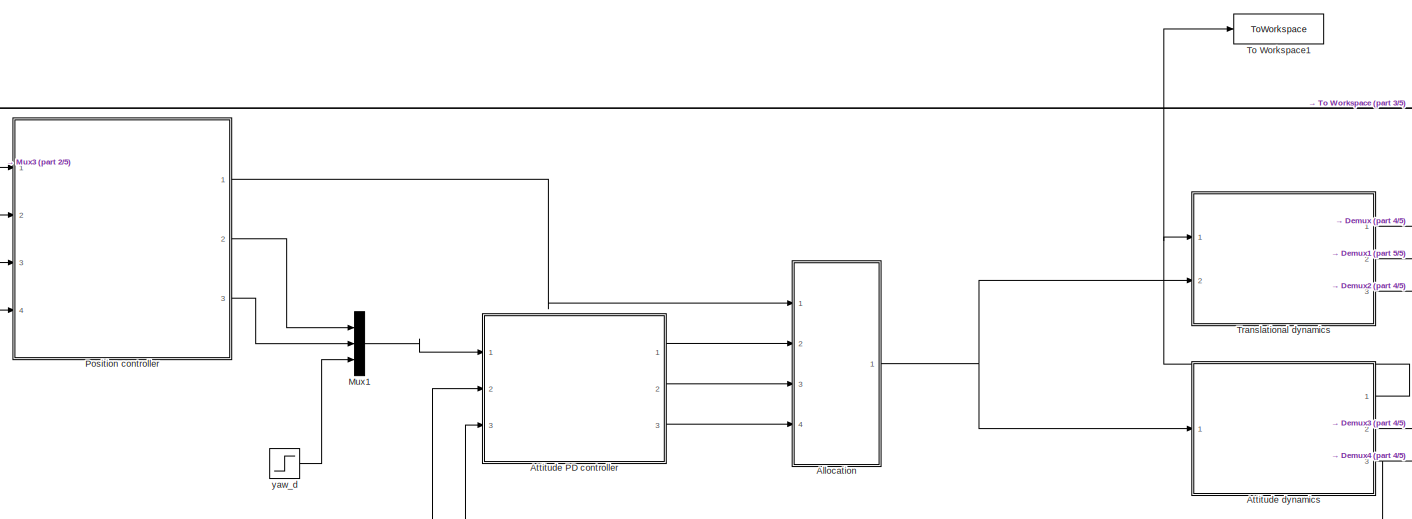
[diagram: root canvas - part 1/5, central region]
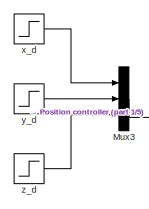
[diagram: root canvas - part 2/5, top left region]
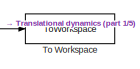
[diagram: root canvas - part 3/5, top right region]
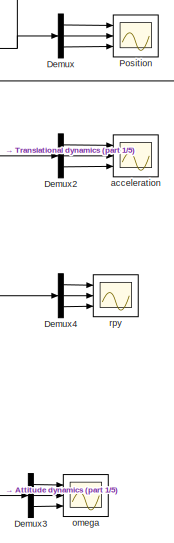
[diagram: root canvas - part 4/5, middle right region]
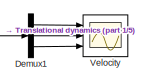
[diagram: root canvas - part 5/5, middle right region]
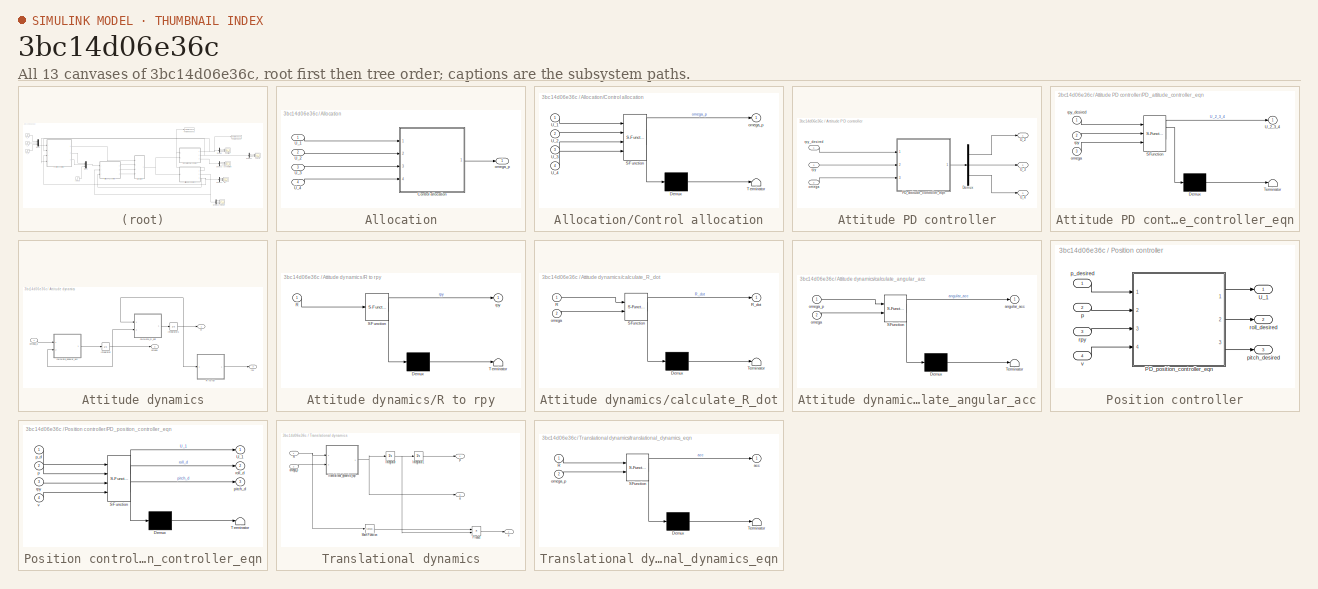
[diagram: thumbnail index - all 13 canvases of the model, root first then tree order]
MODEL slx_3bc14d06e36c
KIND model
CONFIG AbsTol = auto
CONFIG EnableMultiTasking = on
CONFIG FixedStep = 0.01
CONFIG MaxStep = auto
CONFIG MinStep = auto
CONFIG RelTol = 1e-3
CONFIG SampleTimeConstraint = Unconstrained
CONFIG Solver = ode4
CONFIG SolverName = ode4
CONFIG StartTime = 0.0
CONFIG StopTime = 10
BLOCK [SubSystem] Allocation
  Ports = [4, 1]
  RequestExecContextInheritance = off
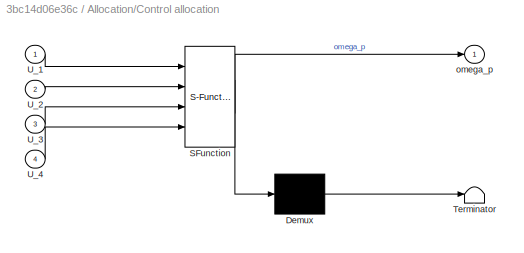
BLOCK [SubSystem] Allocation/Control allocation
  ErrorFcn = Stateflow.Translate.translate
  PermitHierarchicalResolution = ExplicitOnly
  Ports = [4, 1]
  RequestExecContextInheritance = off
  SFBlockType = MATLAB Function
  TreatAsAtomicUnit = on
BLOCK [Demux] Allocation/Control allocation/ Demux 
  Outputs = 1
  Ports = [1, 1]
BLOCK [S-Function] Allocation/Control allocation/ SFunction 
  EnableBusSupport = on
  FunctionName = sf_sfun
  PortCounts = [4 2]
  Ports = [4, 2]
  SFcnIsStateOwnerBlock = off
  SFunctionDeploymentMode = off
  Tag = Stateflow S-Function 7
BLOCK [Terminator] Allocation/Control allocation/ Terminator 
BLOCK [Inport] Allocation/Control allocation/U_1
BLOCK [Inport] Allocation/Control allocation/U_2
  Port = 2
BLOCK [Inport] Allocation/Control allocation/U_3
  Port = 3
BLOCK [Inport] Allocation/Control allocation/U_4
  Port = 4
BLOCK [Outport] Allocation/Control allocation/omega_p
  VectorParamsAs1DForOutWhenUnconnected = off
BLOCK [Inport] Allocation/U_1
BLOCK [Inport] Allocation/U_2
  Port = 2
BLOCK [Inport] Allocation/U_3
  Port = 3
BLOCK [Inport] Allocation/U_4
  Port = 4
BLOCK [Outport] Allocation/omega_p
  PortDimensions = [4,1]
  VarSizeSig = No
  VectorParamsAs1DForOutWhenUnconnected = off
BLOCK [SubSystem] Attitude PD controller
  Ports = [3, 3]
  RequestExecContextInheritance = off
BLOCK [Demux] Attitude PD controller/Demux
  Outputs = 3
  Ports = [1, 3]
BLOCK [SubSystem] Attitude PD controller/PD_attitude_controller_eqn
  ErrorFcn = Stateflow.Translate.translate
  PermitHierarchicalResolution = ExplicitOnly
  Ports = [3, 1]
  RequestExecContextInheritance = off
  SFBlockType = MATLAB Function
  TreatAsAtomicUnit = on
BLOCK [Demux] Attitude PD controller/PD_attitude_controller_eqn/ Demux 
  Outputs = 1
  Ports = [1, 1]
BLOCK [S-Function] Attitude PD controller/PD_attitude_controller_eqn/ SFunction 
  EnableBusSupport = on
  FunctionName = sf_sfun
  PortCounts = [3 2]
  Ports = [3, 2]
  SFcnIsStateOwnerBlock = off
  SFunctionDeploymentMode = off
  Tag = Stateflow S-Function 5
BLOCK [Terminator] Attitude PD controller/PD_attitude_controller_eqn/ Terminator 
BLOCK [Outport] Attitude PD controller/PD_attitude_controller_eqn/U_2_3_4
  VectorParamsAs1DForOutWhenUnconnected = off
BLOCK [Inport] Attitude PD controller/PD_attitude_controller_eqn/omega
  Port = 3
BLOCK [Inport] Attitude PD controller/PD_attitude_controller_eqn/rpy
  Port = 2
BLOCK [Inport] Attitude PD controller/PD_attitude_controller_eqn/rpy_desired
BLOCK [Outport] Attitude PD controller/U_2
  VectorParamsAs1DForOutWhenUnconnected = off
BLOCK [Outport] Attitude PD controller/U_3
  Port = 2
  VectorParamsAs1DForOutWhenUnconnected = off
BLOCK [Outport] Attitude PD controller/U_4
  Port = 3
  VectorParamsAs1DForOutWhenUnconnected = off
BLOCK [Inport] Attitude PD controller/omega 
  Port = 2
BLOCK [Inport] Attitude PD controller/rpy
  Port = 3
BLOCK [Inport] Attitude PD controller/rpy_desired
BLOCK [SubSystem] Attitude dynamics
  Ports = [1, 3]
  RequestExecContextInheritance = off
BLOCK [Integrator] Attitude dynamics/Integrator
  InitialCondition = zeros(3,1)
  Ports = [1, 1]
BLOCK [Integrator] Attitude dynamics/Integrator1
  InitialCondition = eye(3)
  Ports = [1, 1]
BLOCK [Outport] Attitude dynamics/R
  VectorParamsAs1DForOutWhenUnconnected = off
BLOCK [SubSystem] Attitude dynamics/R to rpy
  ErrorFcn = Stateflow.Translate.translate
  PermitHierarchicalResolution = ExplicitOnly
  Ports = [1, 1]
  RequestExecContextInheritance = off
  SFBlockType = MATLAB Function
  TreatAsAtomicUnit = on
BLOCK [Demux] Attitude dynamics/R to rpy/ Demux 
  Outputs = 1
  Ports = [1, 1]
BLOCK [S-Function] Attitude dynamics/R to rpy/ SFunction 
  EnableBusSupport = on
  FunctionName = sf_sfun
  PortCounts = [1 2]
  Ports = [1, 2]
  SFcnIsStateOwnerBlock = off
  SFunctionDeploymentMode = off
  Tag = Stateflow S-Function 4
BLOCK [Terminator] Attitude dynamics/R to rpy/ Terminator 
BLOCK [Inport] Attitude dynamics/R to rpy/R
BLOCK [Outport] Attitude dynamics/R to rpy/rpy
  VectorParamsAs1DForOutWhenUnconnected = off
BLOCK [SubSystem] Attitude dynamics/calculate_R_dot
  ErrorFcn = Stateflow.Translate.translate
  PermitHierarchicalResolution = ExplicitOnly
  Ports = [2, 1]
  RequestExecContextInheritance = off
  SFBlockType = MATLAB Function
  TreatAsAtomicUnit = on
BLOCK [Demux] Attitude dynamics/calculate_R_dot/ Demux 
  Outputs = 1
  Ports = [1, 1]
BLOCK [S-Function] Attitude dynamics/calculate_R_dot/ SFunction 
  EnableBusSupport = on
  FunctionName = sf_sfun
  PortCounts = [2 2]
  Ports = [2, 2]
  SFcnIsStateOwnerBlock = off
  SFunctionDeploymentMode = off
  Tag = Stateflow S-Function 3
BLOCK [Terminator] Attitude dynamics/calculate_R_dot/ Terminator 
BLOCK [Inport] Attitude dynamics/calculate_R_dot/R
BLOCK [Outport] Attitude dynamics/calculate_R_dot/R_dot
  VectorParamsAs1DForOutWhenUnconnected = off
BLOCK [Inport] Attitude dynamics/calculate_R_dot/omega
  Port = 2
BLOCK [SubSystem] Attitude dynamics/calculate_angular_acc
  ErrorFcn = Stateflow.Translate.translate
  PermitHierarchicalResolution = ExplicitOnly
  Ports = [2, 1]
  RequestExecContextInheritance = off
  SFBlockType = MATLAB Function
  TreatAsAtomicUnit = on
BLOCK [Demux] Attitude dynamics/calculate_angular_acc/ Demux 
  Outputs = 1
  Ports = [1, 1]
BLOCK [S-Function] Attitude dynamics/calculate_angular_acc/ SFunction 
  EnableBusSupport = on
  FunctionName = sf_sfun
  PortCounts = [2 2]
  Ports = [2, 2]
  SFcnIsStateOwnerBlock = off
  SFunctionDeploymentMode = off
  Tag = Stateflow S-Function 1
BLOCK [Terminator] Attitude dynamics/calculate_angular_acc/ Terminator 
BLOCK [Outport] Attitude dynamics/calculate_angular_acc/angular_acc
  VectorParamsAs1DForOutWhenUnconnected = off
BLOCK [Inport] Attitude dynamics/calculate_angular_acc/omega
  Port = 2
BLOCK [Inport] Attitude dynamics/calculate_angular_acc/omega_p
BLOCK [Outport] Attitude dynamics/omega
  Port = 2
  VectorParamsAs1DForOutWhenUnconnected = off
BLOCK [Inport] Attitude dynamics/omega_p
BLOCK [Outport] Attitude dynamics/rpy
  Port = 3
  VectorParamsAs1DForOutWhenUnconnected = off
BLOCK [Demux] Demux
  Outputs = 3
  Ports = [1, 3]
BLOCK [Demux] Demux1
  Outputs = 3
  Ports = [1, 3]
BLOCK [Demux] Demux2
  Outputs = 3
  Ports = [1, 3]
BLOCK [Demux] Demux3
  Outputs = 3
  Ports = [1, 3]
BLOCK [Demux] Demux4
  Outputs = 3
  Ports = [1, 3]
BLOCK [Mux] Mux1
  DisplayOption = bar
  Inputs = 3
  Ports = [3, 1]
BLOCK [Mux] Mux3
  DisplayOption = bar
  Inputs = 3
  Ports = [3, 1]
BLOCK [Scope] Position
  Floating = off
  NumInputPorts = 3
  Ports = [3]
  ScopeSpecificationString = Simulink.scopes.TimeScopeBlockCfg('CurrentConfiguration', extmgr.ConfigurationSet(extmgr.Configuration('Core','General UI',true),extmgr.Configuration('Core','Source UI',true),extmgr.Configuration('Sources','WiredSimulink',true,'DataLoggingSaveFormat','StructureWithTime','DataLoggingMaxPoints','10000','DataLoggingLimitDataPoints',true,'DataLoggingDecimation','1','DataLoggingDecimateData',true,'Data...<+3054ch>
BLOCK [SubSystem] Position controller
  Ports = [4, 3]
  RequestExecContextInheritance = off
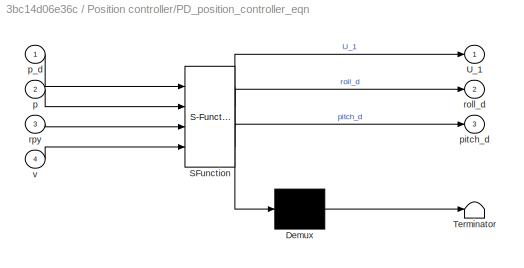
BLOCK [SubSystem] Position controller/PD_position_controller_eqn
  ErrorFcn = Stateflow.Translate.translate
  PermitHierarchicalResolution = ExplicitOnly
  Ports = [4, 3]
  RequestExecContextInheritance = off
  SFBlockType = MATLAB Function
  TreatAsAtomicUnit = on
BLOCK [Demux] Position controller/PD_position_controller_eqn/ Demux 
  Outputs = 1
  Ports = [1, 1]
BLOCK [S-Function] Position controller/PD_position_controller_eqn/ SFunction 
  EnableBusSupport = on
  FunctionName = sf_sfun
  PortCounts = [4 4]
  Ports = [4, 4]
  SFcnIsStateOwnerBlock = off
  SFunctionDeploymentMode = off
  Tag = Stateflow S-Function 9
BLOCK [Terminator] Position controller/PD_position_controller_eqn/ Terminator 
BLOCK [Outport] Position controller/PD_position_controller_eqn/U_1
  VectorParamsAs1DForOutWhenUnconnected = off
BLOCK [Inport] Position controller/PD_position_controller_eqn/p
  Port = 2
BLOCK [Inport] Position controller/PD_position_controller_eqn/p_d
BLOCK [Outport] Position controller/PD_position_controller_eqn/pitch_d
  Port = 3
BLOCK [Outport] Position controller/PD_position_controller_eqn/roll_d
  Port = 2
BLOCK [Inport] Position controller/PD_position_controller_eqn/rpy
  Port = 3
BLOCK [Inport] Position controller/PD_position_controller_eqn/v
  Port = 4
BLOCK [Outport] Position controller/U_1
  VectorParamsAs1DForOutWhenUnconnected = off
BLOCK [Inport] Position controller/p
  Port = 2
BLOCK [Inport] Position controller/p_desired
BLOCK [Outport] Position controller/pitch_desired
  Port = 3
  VectorParamsAs1DForOutWhenUnconnected = off
BLOCK [Outport] Position controller/roll_desired
  Port = 2
  VectorParamsAs1DForOutWhenUnconnected = off
BLOCK [Inport] Position controller/rpy
  Port = 3
BLOCK [Inport] Position controller/v
  Port = 4
BLOCK [ToWorkspace] To Workspace
  FixptAsFi = on
  MaxDataPoints = inf
  Ports = [1]
  SampleTime = -1
  SaveFormat = Timeseries
  VariableName = p
BLOCK [ToWorkspace] To Workspace1
  FixptAsFi = on
  MaxDataPoints = inf
  Ports = [1]
  SampleTime = -1
  SaveFormat = Timeseries
  VariableName = R
BLOCK [SubSystem] Translational dynamics
  Ports = [2, 3]
  RequestExecContextInheritance = off
BLOCK [Integrator] Translational dynamics/Integrator
  Ports = [1, 1]
BLOCK [Integrator] Translational dynamics/Integrator1
  Ports = [1, 1]
BLOCK [Math] Translational dynamics/Math Function
  Operator = transpose
  Ports = [1, 1]
  SignedPower = on
BLOCK [Product] Translational dynamics/Product
  Multiplication = Matrix(*)
  Ports = [2, 1]
BLOCK [Inport] Translational dynamics/R
BLOCK [Outport] Translational dynamics/a
  Port = 3
  VectorParamsAs1DForOutWhenUnconnected = off
BLOCK [Inport] Translational dynamics/omega_p
  Port = 2
BLOCK [Outport] Translational dynamics/p
  VectorParamsAs1DForOutWhenUnconnected = off
BLOCK [SubSystem] Translational dynamics/translational_dynamics_eqn
  ErrorFcn = Stateflow.Translate.translate
  PermitHierarchicalResolution = ExplicitOnly
  Ports = [2, 1]
  RequestExecContextInheritance = off
  SFBlockType = MATLAB Function
  TreatAsAtomicUnit = on
BLOCK [Demux] Translational dynamics/translational_dynamics_eqn/ Demux 
  Outputs = 1
  Ports = [1, 1]
BLOCK [S-Function] Translational dynamics/translational_dynamics_eqn/ SFunction 
  EnableBusSupport = on
  FunctionName = sf_sfun
  PortCounts = [2 2]
  Ports = [2, 2]
  SFcnIsStateOwnerBlock = off
  SFunctionDeploymentMode = off
  Tag = Stateflow S-Function 2
BLOCK [Terminator] Translational dynamics/translational_dynamics_eqn/ Terminator 
BLOCK [Inport] Translational dynamics/translational_dynamics_eqn/R
BLOCK [Outport] Translational dynamics/translational_dynamics_eqn/acc
  VectorParamsAs1DForOutWhenUnconnected = off
BLOCK [Inport] Translational dynamics/translational_dynamics_eqn/omega_p
  Port = 2
BLOCK [Outport] Translational dynamics/v
  Port = 2
  VectorParamsAs1DForOutWhenUnconnected = off
BLOCK [Scope] Velocity
  Floating = off
  NumInputPorts = 3
  Ports = [3]
  ScopeSpecificationString = Simulink.scopes.TimeScopeBlockCfg('CurrentConfiguration', extmgr.ConfigurationSet(extmgr.Configuration('Core','General UI',true),extmgr.Configuration('Core','Source UI',true),extmgr.Configuration('Sources','WiredSimulink',true,'DataLoggingVariableName','ScopeData1','DataLoggingSaveFormat','StructureWithTime','DataLoggingMaxPoints','10000','DataLoggingLimitDataPoints',true,'DataLoggingDecimation','...<+3917ch>
BLOCK [Scope] acceleration
  Floating = off
  NumInputPorts = 3
  Ports = [3]
  ScopeSpecificationString = Simulink.scopes.TimeScopeBlockCfg('CurrentConfiguration', extmgr.ConfigurationSet(extmgr.Configuration('Core','General UI',true),extmgr.Configuration('Core','Source UI',true),extmgr.Configuration('Sources','WiredSimulink',true,'DataLoggingSaveFormat','StructureWithTime','DataLoggingMaxPoints','10000','DataLoggingLimitDataPoints',true,'DataLoggingDecimation','1','DataLoggingDecimateData',true),extm...<+3015ch>
BLOCK [Scope] omega
  Floating = off
  NumInputPorts = 3
  Ports = [3]
  ScopeSpecificationString = Simulink.scopes.TimeScopeBlockCfg('CurrentConfiguration', extmgr.ConfigurationSet(extmgr.Configuration('Core','General UI',true),extmgr.Configuration('Core','Source UI',true),extmgr.Configuration('Sources','WiredSimulink',true,'DataLoggingVariableName','ScopeData4','DataLoggingSaveFormat','StructureWithTime','DataLoggingMaxPoints','10000','DataLoggingLimitDataPoints',true,'DataLoggingDecimation','...<+3061ch>
BLOCK [Scope] rpy
  Floating = off
  NumInputPorts = 3
  Ports = [3]
  ScopeSpecificationString = Simulink.scopes.TimeScopeBlockCfg('CurrentConfiguration', extmgr.ConfigurationSet(extmgr.Configuration('Core','General UI',true),extmgr.Configuration('Core','Source UI',true),extmgr.Configuration('Sources','WiredSimulink',true,'DataLoggingVariableName','ScopeData3','DataLoggingSaveFormat','StructureWithTime','DataLoggingMaxPoints','10000','DataLoggingLimitDataPoints',true,'DataLoggingDecimation','...<+3060ch>
BLOCK [Step] x_d
  After = 4
  SampleTime = 0
BLOCK [Step] y_d
  After = -2
  SampleTime = 0
BLOCK [Step] yaw_d
  After = 0
  SampleTime = 0
BLOCK [Step] z_d
  After = -2
  SampleTime = 0
LINE Allocation/Control allocation:1 -> Allocation/omega_p:1
LINE Allocation/U_1:1 -> Allocation/Control allocation:1
LINE Allocation/U_2:1 -> Allocation/Control allocation:2
LINE Allocation/U_3:1 -> Allocation/Control allocation:3
LINE Allocation/U_4:1 -> Allocation/Control allocation:4
NET Allocation:1 -> Attitude dynamics:1, Translational dynamics:2
LINE Attitude PD controller/Demux:1 -> Attitude PD controller/U_2:1
LINE Attitude PD controller/Demux:2 -> Attitude PD controller/U_3:1
LINE Attitude PD controller/Demux:3 -> Attitude PD controller/U_4:1
LINE Attitude PD controller/PD_attitude_controller_eqn:1 -> Attitude PD controller/Demux:1
LINE Attitude PD controller/omega :1 -> Attitude PD controller/PD_attitude_controller_eqn:3
LINE Attitude PD controller/rpy:1 -> Attitude PD controller/PD_attitude_controller_eqn:2
LINE Attitude PD controller/rpy_desired:1 -> Attitude PD controller/PD_attitude_controller_eqn:1
LINE Attitude PD controller:1 -> Allocation:2
LINE Attitude PD controller:2 -> Allocation:3
LINE Attitude PD controller:3 -> Allocation:4
NET Attitude dynamics/Integrator1:1 -> Attitude dynamics/R to rpy:1, Attitude dynamics/R:1, Attitude dynamics/calculate_R_dot:1
NET Attitude dynamics/Integrator:1 -> Attitude dynamics/calculate_R_dot:2, Attitude dynamics/calculate_angular_acc:2, Attitude dynamics/omega:1
LINE Attitude dynamics/R to rpy:1 -> Attitude dynamics/rpy:1
LINE Attitude dynamics/calculate_R_dot:1 -> Attitude dynamics/Integrator1:1
LINE Attitude dynamics/calculate_angular_acc:1 -> Attitude dynamics/Integrator:1
LINE Attitude dynamics/omega_p:1 -> Attitude dynamics/calculate_angular_acc:1
NET Attitude dynamics:1 -> To Workspace1:1, Translational dynamics:1
NET Attitude dynamics:2 -> Attitude PD controller:2, Demux3:1
NET Attitude dynamics:3 -> Attitude PD controller:3, Demux4:1, Position controller:3
LINE Demux1:1 -> Velocity:1
LINE Demux1:2 -> Velocity:2
LINE Demux1:3 -> Velocity:3
LINE Demux2:1 -> acceleration:1
LINE Demux2:2 -> acceleration:2
LINE Demux2:3 -> acceleration:3
LINE Demux3:1 -> omega:1
LINE Demux3:2 -> omega:2
LINE Demux3:3 -> omega:3
LINE Demux4:1 -> rpy:1
LINE Demux4:2 -> rpy:2
LINE Demux4:3 -> rpy:3
LINE Demux:1 -> Position:1
LINE Demux:2 -> Position:2
LINE Demux:3 -> Position:3
LINE Mux1:1 -> Attitude PD controller:1
LINE Mux3:1 -> Position controller:1
LINE Position controller/PD_position_controller_eqn:1 -> Position controller/U_1:1
LINE Position controller/PD_position_controller_eqn:2 -> Position controller/roll_desired:1
LINE Position controller/PD_position_controller_eqn:3 -> Position controller/pitch_desired:1
LINE Position controller/p:1 -> Position controller/PD_position_controller_eqn:2
LINE Position controller/p_desired:1 -> Position controller/PD_position_controller_eqn:1
LINE Position controller/rpy:1 -> Position controller/PD_position_controller_eqn:3
LINE Position controller/v:1 -> Position controller/PD_position_controller_eqn:4
LINE Position controller:1 -> Allocation:1
LINE Position controller:2 -> Mux1:1
LINE Position controller:3 -> Mux1:2
LINE Translational dynamics/Integrator1:1 -> Translational dynamics/p:1
NET Translational dynamics/Integrator:1 -> Translational dynamics/Integrator1:1, Translational dynamics/Product:2
LINE Translational dynamics/Math Function:1 -> Translational dynamics/Product:1
LINE Translational dynamics/Product:1 -> Translational dynamics/v:1
NET Translational dynamics/R:1 -> Translational dynamics/Math Function:1, Translational dynamics/translational_dynamics_eqn:1
LINE Translational dynamics/omega_p:1 -> Translational dynamics/translational_dynamics_eqn:2
NET Translational dynamics/translational_dynamics_eqn:1 -> Translational dynamics/Integrator:1, Translational dynamics/a:1
NET Translational dynamics:1 -> Demux:1, Position controller:2, To Workspace:1
NET Translational dynamics:2 -> Demux1:1, Position controller:4
LINE Translational dynamics:3 -> Demux2:1
LINE x_d:1 -> Mux3:1
LINE y_d:1 -> Mux3:2
LINE yaw_d:1 -> Mux1:3
LINE z_d:1 -> Mux3:3
note: NET lines group one-source signal fan-out (src -> all destinations, sorted); 1:1 wires keep LINE
CHART Attitude dynamics/calculate_angular_acc states=1 transitions=1
  STATE_LABEL 'eML_blk_kernel()'
  STATE_LABEL 'SCRIPT:\nfunction angular_acc = fcn(omega_p, omega)\n%omega_p is the rotational speed of the propellers. This vector must have\n%size 4.\n%omega is the angular velocity of the MAV expressed in body frame.\n\n%load parameters\n%Inertia is found under params.J\nparams = parameters();\n\n\nU = params.allocation_matrix * (omega_p.^2);\nangular_acc = params.J \\ (-cross(omega, params.J * omega) + U(2:4));\n'
CHART Translational dynamics/translational_dynamics_eqn states=1 transitions=1
  STATE_LABEL 'eML_blk_kernel()'
  STATE_LABEL 'SCRIPT:\nfunction acc = fcn(R, omega_p)\n\n%load parameters\n% to access for instance vehicle mass, use params.m.\n% accelerational gravity is under params.g\nparams = parameters();\n\nU = params.allocation_matrix*(omega_p.^2);\n\n%acceleration is given by:\nacc = - R * [0; 0; U(1)] / params.m + [0; 0; params.g];'
CHART Attitude dynamics/calculate_R_dot states=1 transitions=1
  STATE_LABEL 'eML_blk_kernel()'
  STATE_LABEL "SCRIPT:\nfunction R_dot = fcn(R, omega)\n\n%load parameters\nparams = parameters();\n\n%normalize R every step to guarantee that R is orthogonal matrix (valid\n%rotation)\n[U,~,V] = svd(R);\nR = U*V';\n\n%Write R_dot = R*skew_omega\nR_dot = R*[0 -omega(3) omega(2); omega(3) 0 -omega(1); -omega(2) omega(1) 0];"
CHART Attitude dynamics/R to rpy states=1 transitions=1
  STATE_LABEL 'eML_blk_kernel()'
  STATE_LABEL "SCRIPT:\nfunction rpy = fcn(R)\n\n%calculate roll pitch yaw from rotation matrix\n\n[U,~,V] = svd(R);\nR = U*V';\n\npitch = asin(-R(3,1));\nroll = atan2(R(3,2), R(3,3));\nyaw = atan2(R(2,1), R(1,1));\n\nrpy = [roll; pitch; yaw];\n"
CHART Attitude PD controller/PD_attitude_controller_eqn states=1 transitions=1
  STATE_LABEL 'eML_blk_kernel()'
  STATE_LABEL 'SCRIPT:\nfunction U_2_3_4 = fcn(rpy_desired, rpy, omega)\n\n%load parameters\n%controller Kp is found under params.attitude_Kp\n%controller Kd is found under params.attitude_Kd\nparams = parameters();\n\nroll = rpy(1);\npitch = rpy(2);\nyaw = rpy(3);\n\n%control error is given by\nerror = rpy_desired-rpy;\n\n% Relation between Tait-Bryan angles and angular velocities\n%E_r = ...\nE_r = [1 0 -sin(pitch); ...\n      ...<+295ch>'
CHART Allocation/Control allocation states=1 transitions=1
  STATE_LABEL 'eML_blk_kernel()'
  STATE_LABEL 'SCRIPT:\nfunction omega_p = fcn(U_1, U_2, U_3, U_4)\n\n%load parameters\n\nparams = parameters();\n\nomega_p_sqr = params.pinv_allocation_matrix*[U_1; U_2; U_3; U_4];\n\n%make sure only positive values are allowed.\nomega_p_sqr = max(omega_p_sqr, zeros(4,1));\n\n%actual rotors velocities\nomega_p = sqrt(omega_p_sqr);'
CHART Position controller/PD_position_controller_eqn states=1 transitions=1
  STATE_LABEL 'eML_blk_kernel()'
  STATE_LABEL 'SCRIPT:\nfunction [U_1, roll_d, pitch_d] = fcn(p_d, p, rpy, v)\n%load parameters\n%controller Kp is found under params.velocity_Kp\nparams = parameters();\n\n%control error is given by\nerror = p_d - p;\n\n%control action U is given by\nroll = rpy(1);\npitch = rpy(2);\nyaw = rpy(3);\n\nT = -diag(params.position_Kp) * error + diag(params.position_Kd) * v + [0; 0; params.m * params.g];\n\nT_z = T(3);\nU_1 = T_z / (c...<+210ch>'
CHART  states=0 transitions=0
CHART  states=0 transitions=0
CHART  states=0 transitions=0
CHART  states=0 transitions=0
CHART  states=0 transitions=0
CHART  states=0 transitions=0
CHART  states=0 transitions=0
